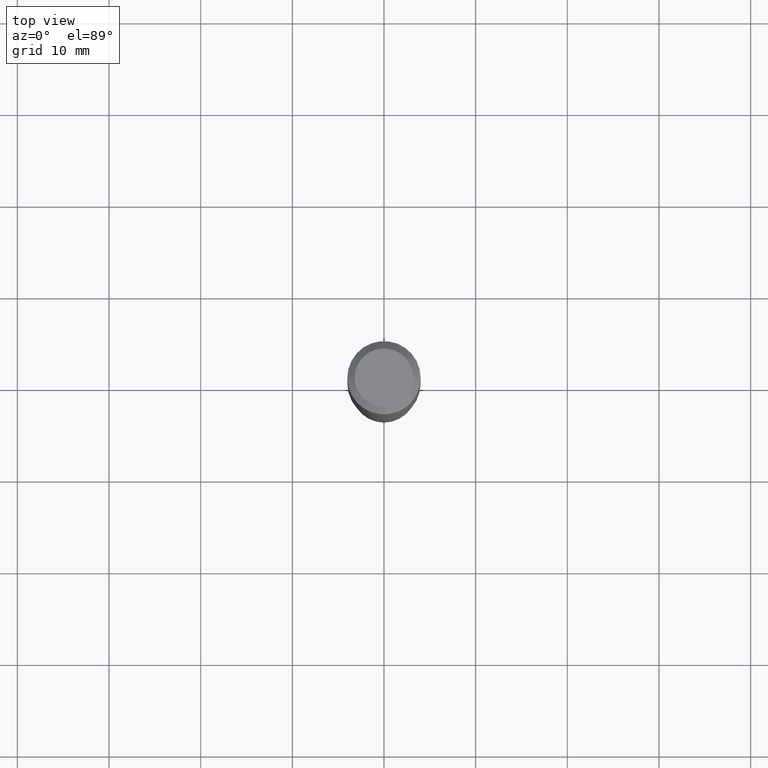
[diagram: clean part render]
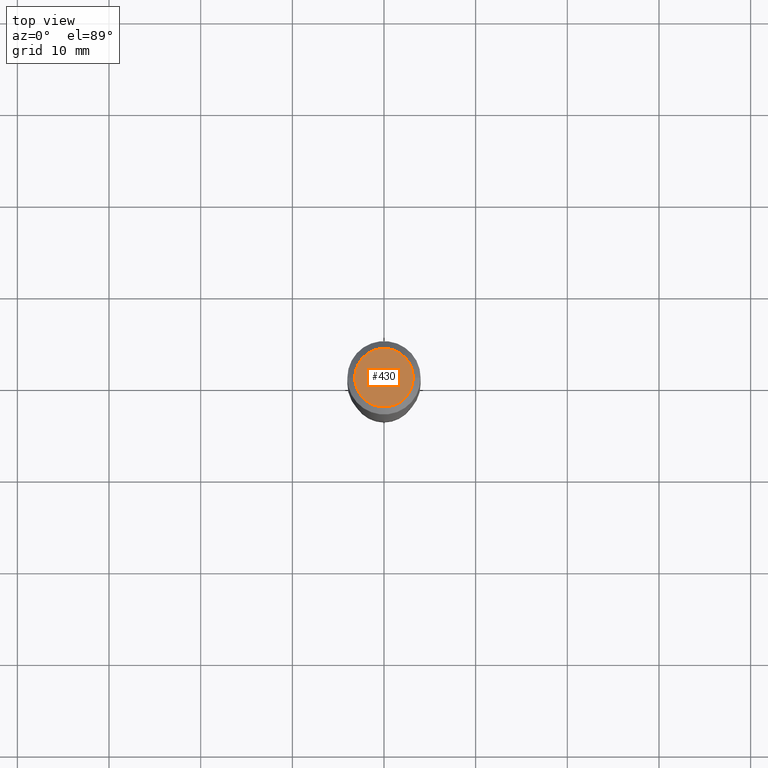
[diagram: same view with one face highlighted and labeled with its STEP entity id]
A machine part, top view. The second image highlights one B-rep face of the part: STEP entity #430.
In plain terms, the highlighted planar face has unit normal (0, -0, -1).
Its self-contained STEP definition (entity closure, byte-faithful):
#7 = DIRECTION ( 'NONE',  ( -1.000000000000000000, 6.982962677686265922E-15, -4.876176775795935793E-29 ) ) ;
#24 = DIRECTION ( 'NONE',  ( 1.000000000000000000, -6.982962677686265922E-15, 4.876281427513067258E-29 ) ) ;
#52 = FACE_OUTER_BOUND ( 'NONE', #103, .T. ) ;
#85 = CARTESIAN_POINT ( 'NONE',  ( -4.719860820353100843E-47, 6.738710358733633822E-33, 1.930043355456229866E-18 ) ) ;
#96 = CARTESIAN_POINT ( 'NONE',  ( -0.1260000000000000009, 9.348441284752484904E-16, 3.860086710906114178E-18 ) ) ;
#100 = ORIENTED_EDGE ( 'NONE', *, *, #187, .T. ) ;
#103 = EDGE_LOOP ( 'NONE', ( #330, #100 ) ) ;
#127 = DIRECTION ( 'NONE',  ( 2.438088387897960049E-29, -3.491481338843145188E-15, -1.000000000000000000 ) ) ;
#187 = EDGE_CURVE ( 'NONE', #436, #360, #434, .T. ) ;
#193 = DIRECTION ( 'NONE',  ( -2.445468806185136597E-29, 3.491481338843145583E-15, 1.000000000000000000 ) ) ;
#232 = CARTESIAN_POINT ( 'NONE',  ( -9.439721640706201686E-47, 1.347742071746726764E-32, 3.860086710912459732E-18 ) ) ;
#235 = EDGE_CURVE ( 'NONE', #360, #436, #406, .T. ) ;
#241 = CARTESIAN_POINT ( 'NONE',  ( 0.1260000000000000009, -1.027466422270894443E-15, 3.860086710919128072E-18 ) ) ;
#286 = AXIS2_PLACEMENT_3D ( 'NONE', #85, #127, #7 ) ;
#297 = AXIS2_PLACEMENT_3D ( 'NONE', #232, #193, #340 ) ;
#330 = ORIENTED_EDGE ( 'NONE', *, *, #235, .T. ) ;
#340 = DIRECTION ( 'NONE',  ( 1.000000000000000000, -6.982962677686265922E-15, 4.876281427513067258E-29 ) ) ;
#360 = VERTEX_POINT ( 'NONE', #96 ) ;
#364 = CARTESIAN_POINT ( 'NONE',  ( -9.439721640706201686E-47, 1.347742071746726764E-32, 3.860086710912459732E-18 ) ) ;
#406 = CIRCLE ( 'NONE', #297, 0.1260000000000000009 ) ;
#428 = PLANE ( 'NONE',  #286 ) ;
#430 = ADVANCED_FACE ( 'NONE', ( #52 ), #428, .F. ) ;
#434 = CIRCLE ( 'NONE', #443, 0.1260000000000000009 ) ;
#436 = VERTEX_POINT ( 'NONE', #241 ) ;
#443 = AXIS2_PLACEMENT_3D ( 'NONE', #364, #445, #24 ) ;
#445 = DIRECTION ( 'NONE',  ( -2.445468806185136597E-29, 3.491481338843145583E-15, 1.000000000000000000 ) ) ;